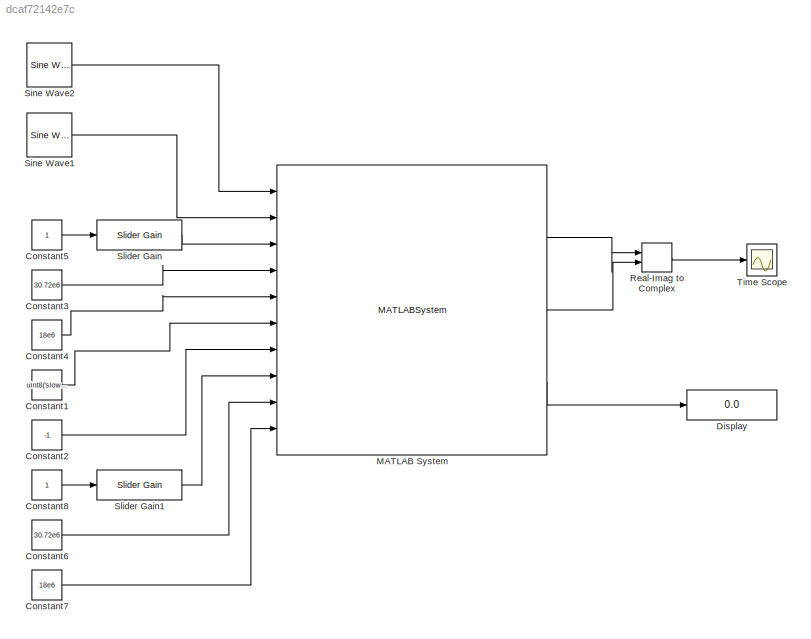
MODEL slx_dcaf72142e7c
KIND model
CONFIG AbsTol = auto
CONFIG EnableMultiTasking = on
CONFIG FixedStep = auto
CONFIG MaxStep = auto
CONFIG MinStep = auto
CONFIG RelTol = 1e-3
CONFIG SampleTimeConstraint = Unconstrained
CONFIG Solver = ode45
CONFIG SolverName = ode45
CONFIG StartTime = 0.0
CONFIG StopTime = Inf
BLOCK [Constant] Constant1
  SampleTime = -1
  Value = uint8('slow_attack')
BLOCK [Constant] Constant2
  SampleTime = -1
  Value = -1
BLOCK [Constant] Constant3
  SampleTime = -1
  Value = 30.72e6
BLOCK [Constant] Constant4
  SampleTime = -1
  Value = 18e6
BLOCK [Constant] Constant5
  SampleTime = -1
BLOCK [Constant] Constant6
  SampleTime = -1
  Value = 30.72e6
BLOCK [Constant] Constant7
  SampleTime = -1
  Value = 18e6
BLOCK [Constant] Constant8
  SampleTime = -1
BLOCK [Display] Display
  Decimation = 1
  Ports = [1]
BLOCK [MATLABSystem] MATLAB System
  DialogController = sysobjdialog.BlockDynDialog
  MaskDisplay = disp('ad9364');\nport_label('input',1,'DATA_IN1');\nport_label('input',2,'DATA_IN2');\nport_label('input',3,'RX_LO_FREQ');\nport_label('input',4,'RX_SAMPLING_FREQ');\nport_label('input',5,'RX_RF_BANDWIDTH');\nport_label('input',6,'RX_GAIN_MODE');\nport_label('input',7,'RX_GAIN');\nport_label('input',8,'TX_LO_FREQ');\nport_label('input',9,'TX_SAMPLING_FREQ');\nport_label('input',10,'TX_RF_BANDWIDTH');\nport_l...<+99ch>
  MaskType = iio_sys_obj
  Ports = [10, 3]
  SimulateUsing = Interpreted execution
  System = iio_sys_obj
  dev_name = ad9364
  in_ch_no = 2
  in_ch_size = 32768
  ip_address = 192.168.3.2
  out_ch_no = 2
  out_ch_size = 8192
BLOCK [RealImagToComplex] Real-Imag to Complex
  Ports = [2, 1]
BLOCK [Reference] Sine Wave1  REF=dspsrcs4/Sine Wave
  Ports = [0, 1]
  SourceBlock = dspsrcs4/Sine Wave
  SourceProductBaseCode = DS
  SourceProductName = DSP System Toolbox
  SourceType = Sine Wave
BLOCK [Reference] Sine Wave2  REF=dspsrcs4/Sine Wave
  Ports = [0, 1]
  SourceBlock = dspsrcs4/Sine Wave
  SourceProductBaseCode = DS
  SourceProductName = DSP System Toolbox
  SourceType = Sine Wave
BLOCK [Reference] Slider Gain  REF=simulink/Math
Operations/Slider
Gain
  Ports = [1, 1]
  SourceBlock = simulink/Math\nOperations/Slider\nGain
  SourceProductBaseCode = SL
  SourceProductName = Simulink
  SourceType = Slider Gain
BLOCK [Reference] Slider Gain1  REF=simulink/Math
Operations/Slider
Gain
  Ports = [1, 1]
  SourceBlock = simulink/Math\nOperations/Slider\nGain
  SourceProductBaseCode = SL
  SourceProductName = Simulink
  SourceType = Slider Gain
BLOCK [Scope] Time Scope
  DefaultConfigurationName = spbscopes.TimeScopeBlockCfg
  Floating = off
  NumInputPorts = 1
  Ports = [1]
  ScopeSpecificationString = spbscopes.TimeScopeBlockCfg('Version','2016b')
  UserDataPersistent = on
LINE Constant1:1 -> MATLAB System:6
LINE Constant2:1 -> MATLAB System:7
LINE Constant3:1 -> MATLAB System:4
LINE Constant4:1 -> MATLAB System:5
LINE Constant5:1 -> Slider Gain:1
LINE Constant6:1 -> MATLAB System:9
LINE Constant7:1 -> MATLAB System:10
LINE Constant8:1 -> Slider Gain1:1
LINE MATLAB System:1 -> Real-Imag to Complex:1
LINE MATLAB System:2 -> Real-Imag to Complex:2
LINE MATLAB System:3 -> Display:1
LINE Real-Imag to Complex:1 -> Time Scope:1
LINE Sine Wave1:1 -> MATLAB System:2
LINE Sine Wave2:1 -> MATLAB System:1
LINE Slider Gain1:1 -> MATLAB System:8
LINE Slider Gain:1 -> MATLAB System:3
